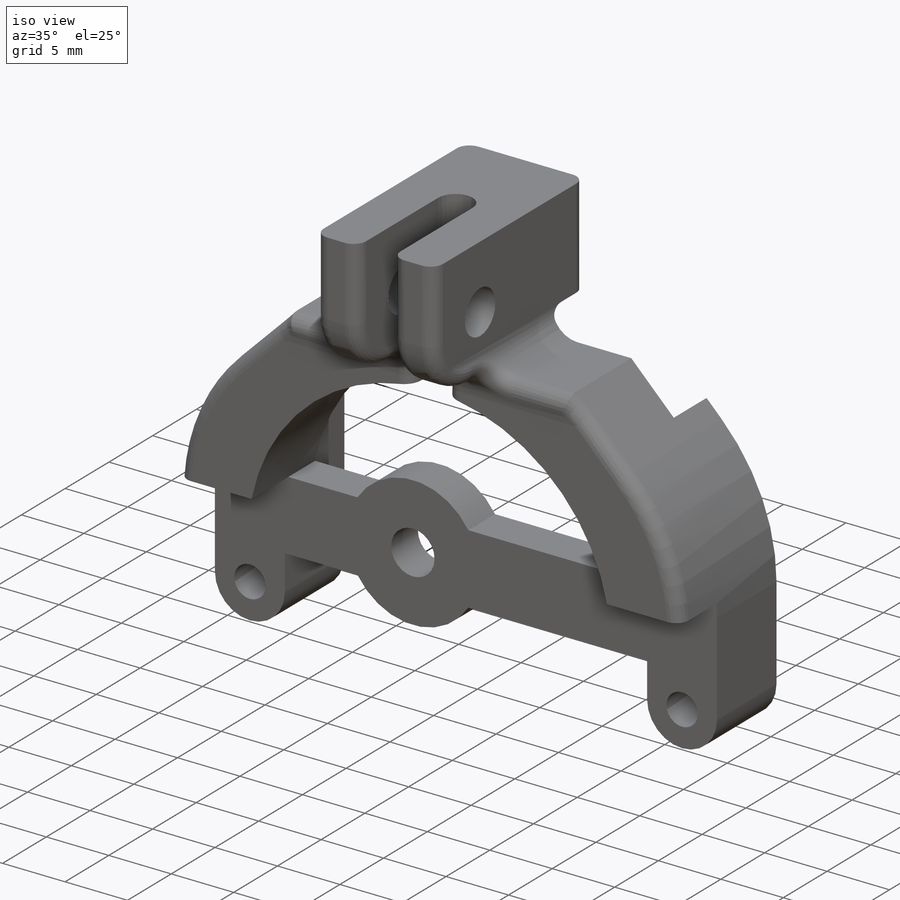
[diagram: iso view]
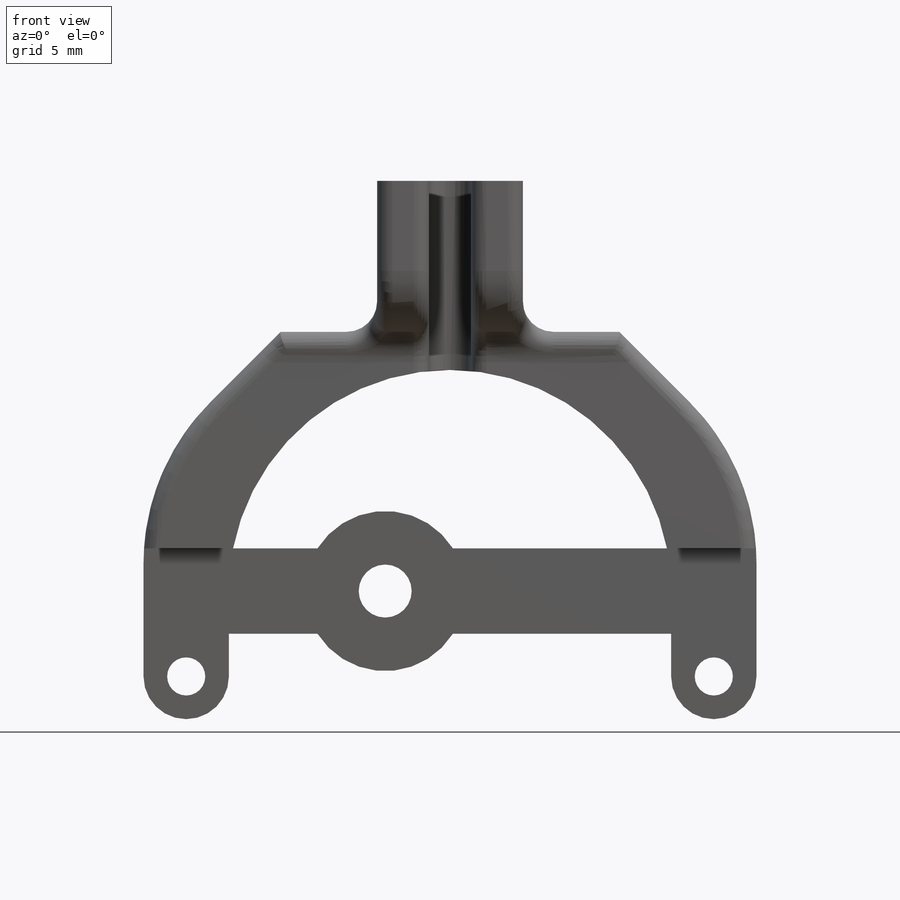
[diagram: front view]
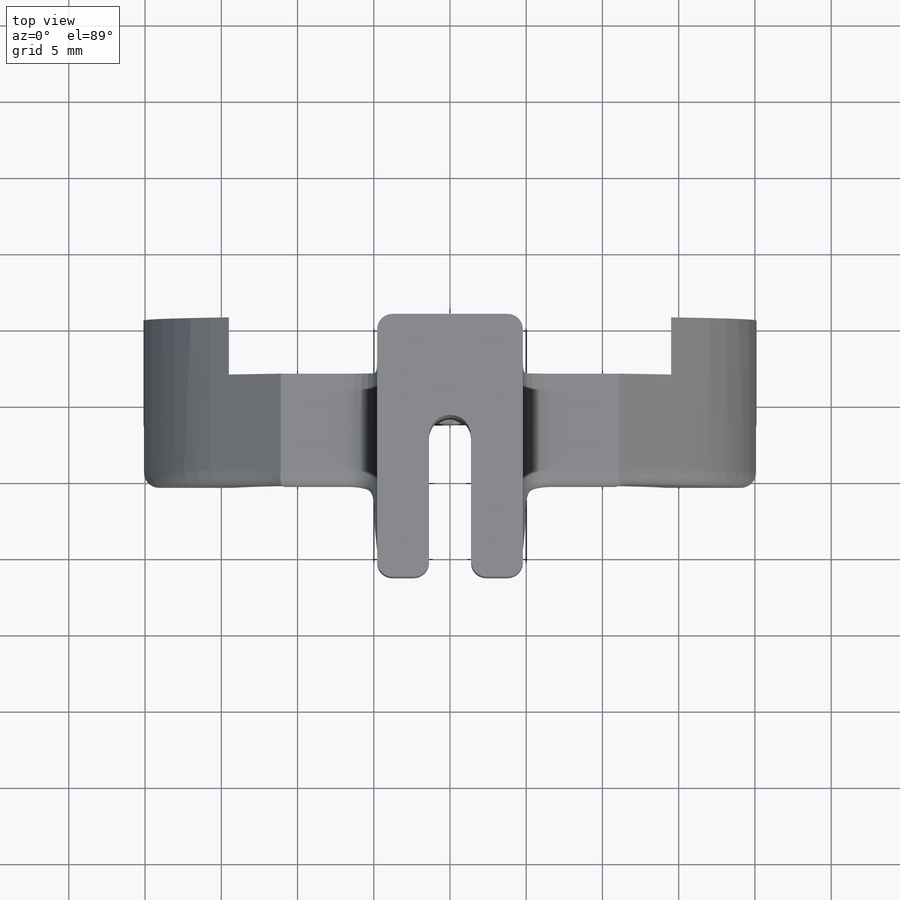
[diagram: top view]
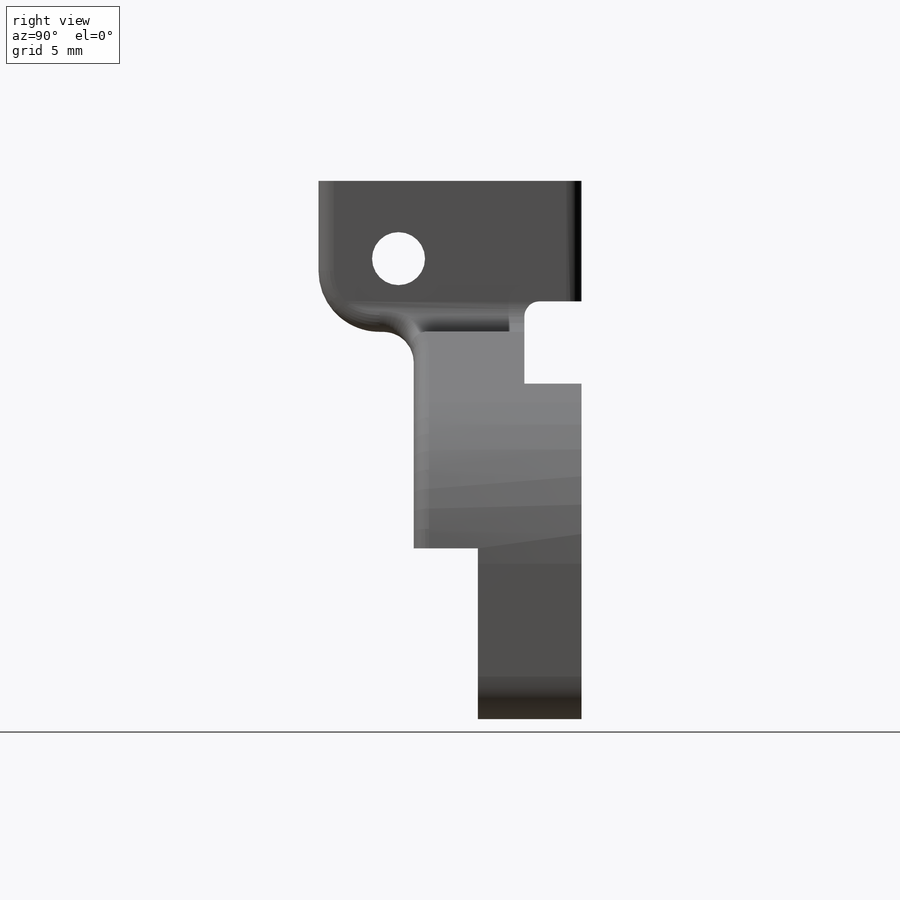
[diagram: right view]
SOLIDWORKS PART (.sldprt)
format: sldprt  version: not decoded by parser v0  size: 1,222,656 bytes
history: native  units: mm
features: sketch x13, cut_extrude x8, extrude x5, fillet x4, material x1, chamfer x1 + 1 further entry (+18 scaffold rows collapsed; 3 parser-record rows omitted)
feature tree (54):
  scaffold x18  (default folders/planes/origin — collapsed)
  material  "ABS"
  "params_print"
  parser-record x3  (decoder bookkeeping rows leaked as tree rows — omitted from the tree; the rows remain in map.json)
  sketch  "Sketch1"  dims[c1.D2=2.7mm c1.D4=2.5mm c1.D6=10.0mm c1.D1=17.3mm c1.D3=9.6mm c1.D5=2.8mm c2.D6=7.5mm c2.D7=4.0mm c3.D6=12.25mm c3.D8=9.0mm c3.D9=4.0mm c3.D10=48.1mm c3.D11=25.0mm c4.D10=48.1mm]
  extrude  "Body"  Depth=11mm
  sketch  "Sketch6"  dims[D1=2.4mm D3=1.0mm D2=8.0mm]
  cut_extrude  "Pulley Clearance"  [1 undecoded]
  sketch  "Sketch17"  dims[c1.D1=1.27mm c1.D2=3.5mm c1.D3=9.25mm c1.D4=~1.534254mm c2.D1=6.25mm c2.D3=2.56mm c2.D4=1.28mm c2.D2=4.78mm]
  extrude  "Pulley Block"  Depth=9.9mm
  sketch  "Sketch18"  dims[c1.D5=3.175mm c1.D1=8.0mm c1.D2=4.0mm c1.D3=4.8mm c1.D4=4.8mm c2.D1=8.0mm c2.D3=4.8mm]
  cut_extrude  "Pulley Pin"  [1 undecoded]
  sketch  "Sketch19"  dims[D2=30.0mm D1=4.0mm]
  cut_extrude  "Front Clearance"  Depth=7.5mm
  sketch  "Sketch25"
  extrude  "Pulley Block Support"  [1 undecoded]
  sketch  "Sketch28"  dims[c1.D1=~27.683349mm c2.D1=~20.755659mm c2.D2=~27.261455mm c3.D1=2.0mm]
  cut_extrude  "Servo Clearance"  Depth=3.75mm
  sketch  "Sketch27"  dims[D2=3.175mm D1=4.25mm]
  extrude  "Reroute Block"  [1 undecoded]
  sketch  "Sketch29"  dims[c1.D1=~11.837894mm c1.D2=40.2mm c2.D1=11.2mm c2.D2=40.2mm]
  cut_extrude  "Reroute Clearance"  Depth=4.2mm
  sketch  "Sketch30"  dims[D1=10.5mm]
  extrude  "Reroute Pulley Block"  [1 undecoded]
  sketch  "Sketch32"  dims[D1=0.175mm]
  cut_extrude  "Clearance - Pulley"  [1 undecoded]
  sketch  "Sketch33"  dims[D1=0.15mm]
  cut_extrude  "Clearance - Pin Fit"  [1 undecoded]
  sketch  "Sketch35"  dims[D1=0.15mm]
  cut_extrude  "Clearance - Pin Fit 2"  [1 undecoded]
  chamfer  "Chamfer1"  Distance=9mm Angle=45deg
  fillet  "Fillet1"  Radius=15mm
  fillet  "Fillet2"  Radius=4mm
  fillet  "Fillet3"  Radius=2mm
  fillet  "Fillet4"  Radius=1mm
decode coverage: 22 of 31 modeling features carry decoded parameters; 1 rows unclassified (native names shown)
note: ~ marks probable driven/reference dimensions
note: 8 parameter values undecoded
summary: no parameter record found for 8 features
note: suppression state not decoded; provenance and decode notes live in map.json
